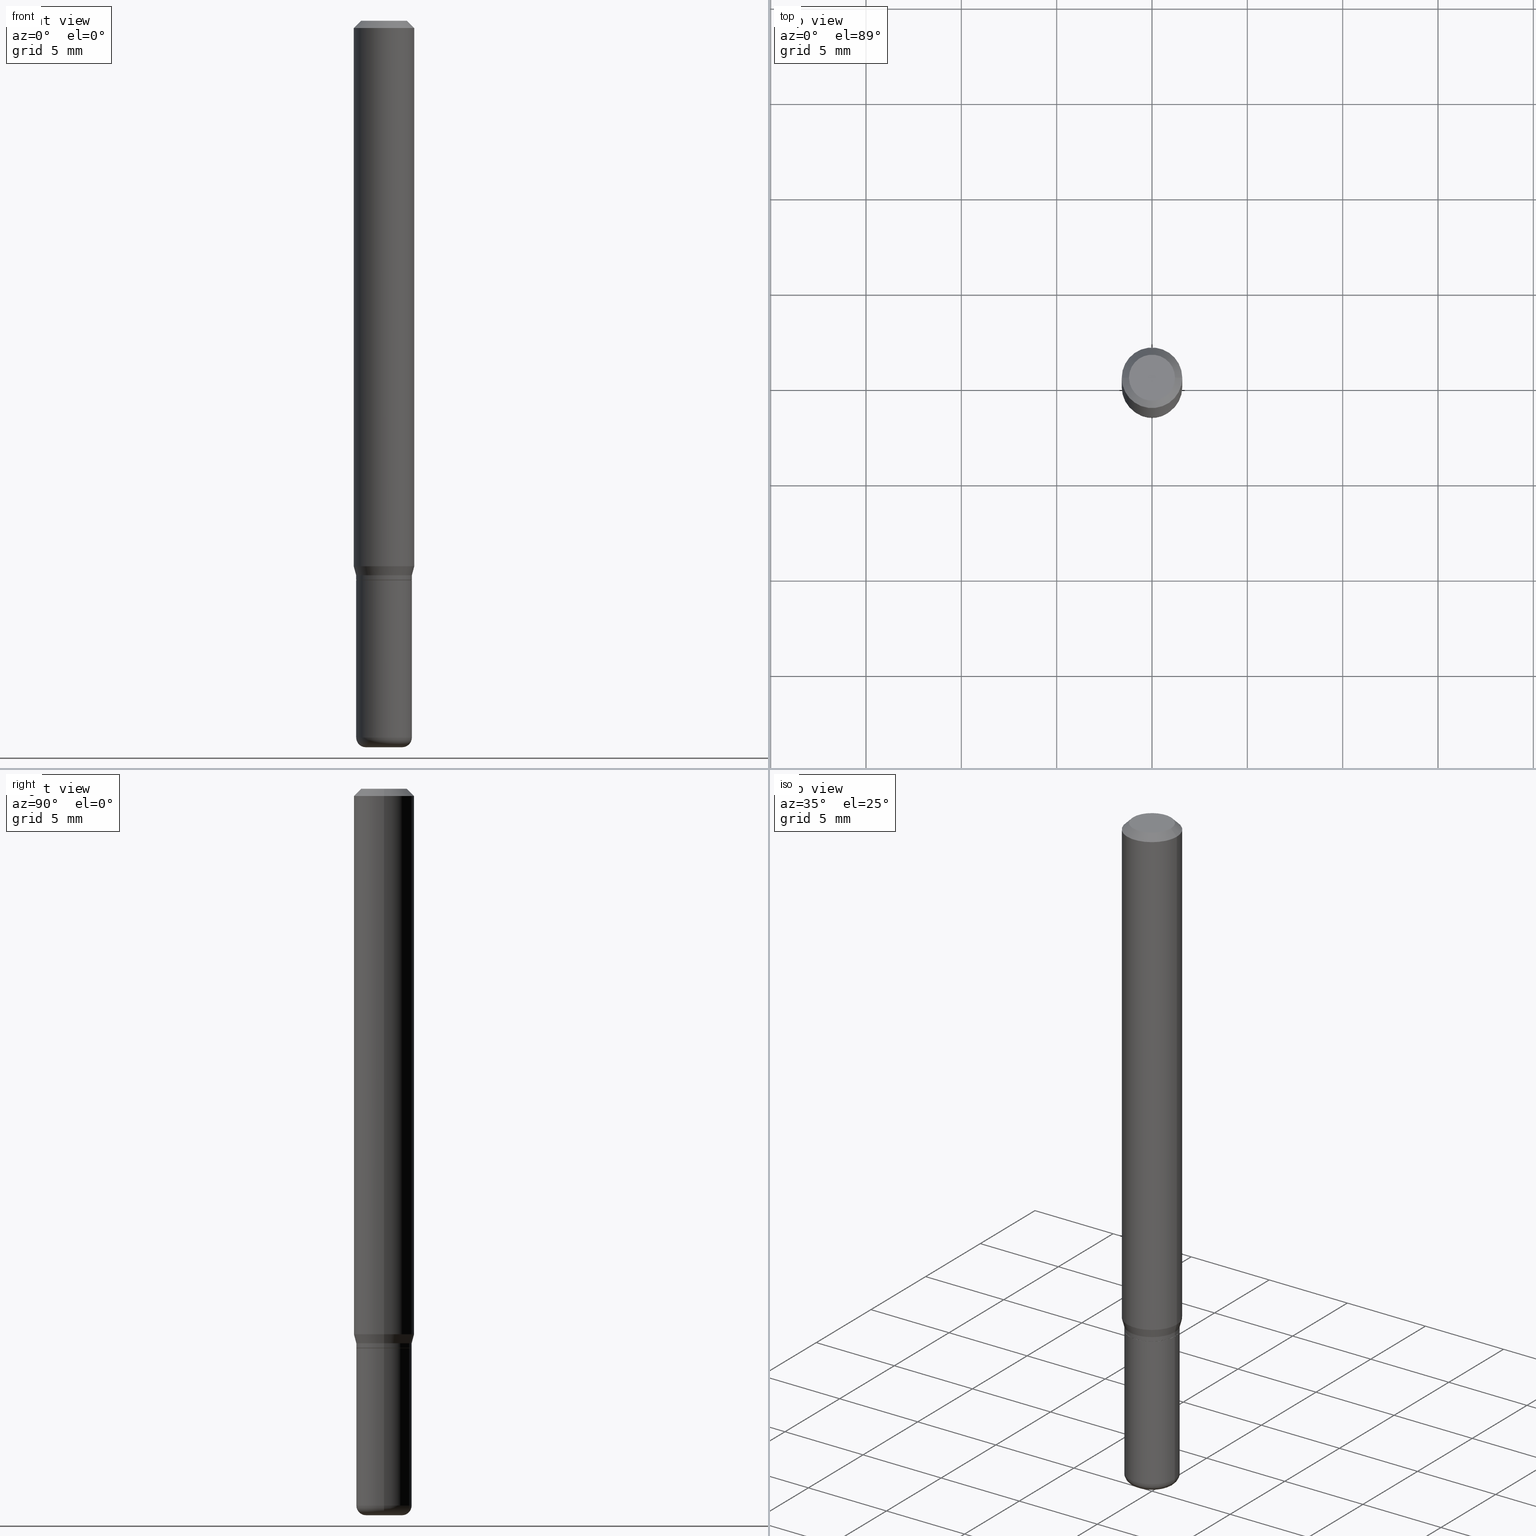
[diagram: canonical four-view strip — front | top / right | iso, engineering-drawing reading convention]
A machine part, canonical four-view strip (front | top / right | iso — engineering-drawing reading convention). The complete STEP part file that produces these views, byte-faithful:
ISO-10303-21;
HEADER;
FILE_DESCRIPTION (( 'STEP AP203' ),
    '1' );
FILE_NAME ('08628.STEP',
    '2024-02-29T20:03:48',
    ( '' ),
    ( '' ),
    'SwSTEP 2.0',
    'SolidWorks 2023',
    '' );
FILE_SCHEMA (( 'CONFIG_CONTROL_DESIGN' ));
ENDSEC;

DATA;
#1 = TOROIDAL_SURFACE ( 'NONE', #433, 0.03749999999999999861, 0.02000000000000002470 ) ;
#2 = APPLICATION_PROTOCOL_DEFINITION ( 'international standard', 'config_control_design', 1994, #390 ) ;
#3 = AXIS2_PLACEMENT_3D ( 'NONE', #147, #298, #456 ) ;
#4 = APPROVAL_PERSON_ORGANIZATION ( #484, #283, #92 ) ;
#5 = ORIENTED_EDGE ( 'NONE', *, *, #215, .T. ) ;
#6 = DATE_AND_TIME ( #487, #320 ) ;
#7 = CYLINDRICAL_SURFACE ( 'NONE', #10, 0.05750000000000001638 ) ;
#8 = DATE_AND_TIME ( #246, #376 ) ;
#9 = LINE ( 'NONE', #285, #69 ) ;
#10 = AXIS2_PLACEMENT_3D ( 'NONE', #324, #216, #243 ) ;
#11 = CONICAL_SURFACE ( 'NONE', #343, 0.05700000000000001593, 0.7853981633975507526 ) ;
#12 = DIRECTION ( 'NONE',  ( 0.2588190451025199623, 1.565188264969633209E-15, 0.9659258262890685343 ) ) ;
#13 = SECURITY_CLASSIFICATION_LEVEL ( 'unclassified' ) ;
#14 = ADVANCED_FACE ( 'NONE', ( #510 ), #452, .T. ) ;
#15 = CARTESIAN_POINT ( 'NONE',  ( -0.03749999999999999861, -4.900938855577818255E-15, -1.479999999999999982 ) ) ;
#16 = CARTESIAN_POINT ( 'NONE',  ( 2.824516471143833307E-29, -4.032660946363833383E-15, -1.155000000000000027 ) ) ;
#17 = DIRECTION ( 'NONE',  ( -2.445468806185136597E-29, 3.491481338843145583E-15, 1.000000000000000000 ) ) ;
#18 = AXIS2_PLACEMENT_3D ( 'NONE', #490, #47, #447 ) ;
#19 = ORIENTED_EDGE ( 'NONE', *, *, #460, .T. ) ;
#20 = CIRCLE ( 'NONE', #308, 0.03750000000000000555 ) ;
#21 = VECTOR ( 'NONE', #162, 39.37007874015748143 ) ;
#22 = CARTESIAN_POINT ( 'NONE',  ( 0.05750000000000003025, -5.568912735454815688E-15, -1.479999999999999982 ) ) ;
#23 = ORIENTED_EDGE ( 'NONE', *, *, #64, .F. ) ;
#24 = FACE_OUTER_BOUND ( 'NONE', #152, .T. ) ;
#25 = ORIENTED_EDGE ( 'NONE', *, *, #164, .T. ) ;
#26 = DIRECTION ( 'NONE',  ( 1.000000000000000000, -6.982962677686270655E-15, 4.883557194083114583E-29 ) ) ;
#27 = EDGE_LOOP ( 'NONE', ( #5, #25, #360, #66 ) ) ;
#28 = AXIS2_PLACEMENT_3D ( 'NONE', #338, #501, #26 ) ;
#29 = DIRECTION ( 'NONE',  ( -2.445468806185136597E-29, 3.491481338843145583E-15, 1.000000000000000000 ) ) ;
#30 = ADVANCED_FACE ( 'NONE', ( #316 ), #1, .T. ) ;
#31 = EDGE_LOOP ( 'NONE', ( #44, #61, #474, #186 ) ) ;
#32 = ORIENTED_EDGE ( 'NONE', *, *, #64, .T. ) ;
#33 = DIRECTION ( 'NONE',  ( 1.000000000000000000, -6.982962677686265922E-15, 4.876176775795935793E-29 ) ) ;
#34 = ORIENTED_EDGE ( 'NONE', *, *, #470, .T. ) ;
#35 = CLOSED_SHELL ( 'NONE', ( #361, #229, #315, #369, #94, #14, #421, #486, #109, #392, #127, #365 ) ) ;
#36 = CIRCLE ( 'NONE', #104, 0.04750000000000000749 ) ;
#37 = CC_DESIGN_APPROVAL ( #283, ( #114 ) ) ;
#38 = CARTESIAN_POINT ( 'NONE',  ( -0.05750000000000000250, 4.085620730620576246E-16, -2.828387676896570712E-30 ) ) ;
#39 = ORIENTED_EDGE ( 'NONE', *, *, #429, .F. ) ;
#40 = EDGE_CURVE ( 'NONE', #78, #58, #479, .T. ) ;
#41 = CARTESIAN_POINT ( 'NONE',  ( 0.06250000000000000000, -4.364351673553916694E-16, 3.047610484872459871E-30 ) ) ;
#42 = EDGE_LOOP ( 'NONE', ( #458, #34, #339, #280 ) ) ;
#43 = DIRECTION ( 'NONE',  ( -2.445468806185136597E-29, 3.491481338843145583E-15, 1.000000000000000000 ) ) ;
#44 = ORIENTED_EDGE ( 'NONE', *, *, #164, .F. ) ;
#45 = COORDINATED_UNIVERSAL_TIME_OFFSET ( 5, 0, .BEHIND. ) ;
#46 = AXIS2_PLACEMENT_3D ( 'NONE', #386, #29, #191 ) ;
#47 = DIRECTION ( 'NONE',  ( -2.445468806185136597E-29, 3.491481338843145583E-15, 1.000000000000000000 ) ) ;
#48 = ADVANCED_FACE ( 'NONE', ( #83 ), #7, .T. ) ;
#49 = DIRECTION ( 'NONE',  ( 2.438088387897960049E-29, -3.491481338843145188E-15, -1.000000000000000000 ) ) ;
#50 = APPROVAL_DATE_TIME ( #135, #283 ) ;
#51 = DIRECTION ( 'NONE',  ( -2.445468806185136597E-29, 3.491481338843145583E-15, 1.000000000000000000 ) ) ;
#52 = VECTOR ( 'NONE', #252, 39.37007874015748143 ) ;
#53 = CARTESIAN_POINT ( 'NONE',  ( 2.800061783081981762E-29, -3.997746132975402522E-15, -1.145000000000000240 ) ) ;
#54 = AXIS2_PLACEMENT_3D ( 'NONE', #506, #43, #153 ) ;
#55 = CARTESIAN_POINT ( 'NONE',  ( 0.000000000000000000, 0.000000000000000000, 0.000000000000000000 ) ) ;
#56 = DIRECTION ( 'NONE',  ( 1.000000000000000000, -6.982962677686263555E-15, 0.000000000000000000 ) ) ;
#57 = LINE ( 'NONE', #184, #113 ) ;
#58 = VERTEX_POINT ( 'NONE', #488 ) ;
#59 = FACE_OUTER_BOUND ( 'NONE', #395, .T. ) ;
#60 = AXIS2_PLACEMENT_3D ( 'NONE', #75, #82, #233 ) ;
#61 = ORIENTED_EDGE ( 'NONE', *, *, #497, .T. ) ;
#62 = MANIFOLD_SOLID_BREP ( 'Body-Move/Copy2[1]', #327 ) ;
#63 = DIRECTION ( 'NONE',  ( -2.445468806185136597E-29, 3.491481338843145583E-15, 1.000000000000000000 ) ) ;
#64 = EDGE_CURVE ( 'NONE', #105, #391, #134, .T. ) ;
#65 = DIRECTION ( 'NONE',  ( -2.445468806185136597E-29, 3.491481338843145583E-15, 1.000000000000000000 ) ) ;
#66 = ORIENTED_EDGE ( 'NONE', *, *, #225, .F. ) ;
#67 = EDGE_CURVE ( 'NONE', #144, #397, #9, .T. ) ;
#68 = DIRECTION ( 'NONE',  ( 1.000000000000000000, -6.982962677686265922E-15, 4.876176775795935232E-29 ) ) ;
#69 = VECTOR ( 'NONE', #409, 39.37007874015748143 ) ;
#70 = CONICAL_SURFACE ( 'NONE', #463, 0.05700000000000001593, 0.7853981633975507526 ) ;
#71 = CC_DESIGN_APPROVAL ( #179, ( #512 ) ) ;
#72 = FACE_OUTER_BOUND ( 'NONE', #159, .T. ) ;
#73 = VERTEX_POINT ( 'NONE', #445 ) ;
#74 = MANIFOLD_SOLID_BREP ( 'Body-Move/Copy2[2]', #35 ) ;
#75 = CARTESIAN_POINT ( 'NONE',  ( 0.000000000000000000, 0.000000000000000000, 0.000000000000000000 ) ) ;
#76 = ORIENTED_EDGE ( 'NONE', *, *, #413, .T. ) ;
#77 = PLANE ( 'NONE',  #471 ) ;
#78 = VERTEX_POINT ( 'NONE', #170 ) ;
#79 = CC_DESIGN_PERSON_AND_ORGANIZATION_ASSIGNMENT ( #169, #130, ( #512 ) ) ;
#80 = AXIS2_PLACEMENT_3D ( 'NONE', #336, #63, #217 ) ;
#81 = AXIS2_PLACEMENT_3D ( 'NONE', #352, #239, #399 ) ;
#82 = DIRECTION ( 'NONE',  ( -2.445468806185136597E-29, 3.491481338843145583E-15, 1.000000000000000000 ) ) ;
#83 = FACE_OUTER_BOUND ( 'NONE', #278, .T. ) ;
#84 = DIRECTION ( 'NONE',  ( -2.445468806185136877E-29, 3.491481338843145188E-15, 1.000000000000000000 ) ) ;
#85 = ORIENTED_EDGE ( 'NONE', *, *, #148, .F. ) ;
#86 = EDGE_CURVE ( 'NONE', #78, #168, #481, .T. ) ;
#87 = CALENDAR_DATE ( 2024, 29, 2 ) ;
#88 = CARTESIAN_POINT ( 'NONE',  ( -0.05700000000000001593, -3.627651586980575917E-15, -1.155000000000000027 ) ) ;
#89 = AXIS2_PLACEMENT_3D ( 'NONE', #107, #504, #263 ) ;
#90 = AXIS2_PLACEMENT_3D ( 'NONE', #205, #396, #307 ) ;
#91 = FACE_OUTER_BOUND ( 'NONE', #299, .T. ) ;
#92 = APPROVAL_ROLE ( '' ) ;
#93 = PLANE ( 'NONE',  #353 ) ;
#94 = ADVANCED_FACE ( 'NONE', ( #493 ), #98, .T. ) ;
#95 = PERSON_AND_ORGANIZATION ( #244, #385 ) ;
#96 = LINE ( 'NONE', #363, #52 ) ;
#97 = DATE_TIME_ROLE ( 'classification_date' ) ;
#98 = CONICAL_SURFACE ( 'NONE', #270, 0.05749999999999999556, 0.2617993877991485197 ) ;
#99 = PLANE ( 'NONE',  #402 ) ;
#100 = DIRECTION ( 'NONE',  ( 1.000000000000000000, -6.982962677686266711E-15, 4.852736867747365086E-29 ) ) ;
#101 = DIRECTION ( 'NONE',  ( -2.445468806185136597E-29, 3.491481338843145583E-15, 1.000000000000000000 ) ) ;
#102 = EDGE_LOOP ( 'NONE', ( #227, #19, #383, #23 ) ) ;
#103 = DIRECTION ( 'NONE',  ( 1.000000000000000000, -6.982962677686263555E-15, 0.000000000000000000 ) ) ;
#104 = AXIS2_PLACEMENT_3D ( 'NONE', #141, #347, #100 ) ;
#105 = VERTEX_POINT ( 'NONE', #406 ) ;
#106 = CC_DESIGN_APPROVAL ( #297, ( #398 ) ) ;
#107 = CARTESIAN_POINT ( 'NONE',  ( 0.03749999999999999861, -5.429253481901090669E-15, -1.479999999999999982 ) ) ;
#108 = EDGE_LOOP ( 'NONE', ( #342, #416 ) ) ;
#109 = ADVANCED_FACE ( 'NONE', ( #91 ), #93, .F. ) ;
#110 = CYLINDRICAL_SURFACE ( 'NONE', #328, 0.05750000000000000250 ) ;
#111 = ORIENTED_EDGE ( 'NONE', *, *, #429, .T. ) ;
#112 = CYLINDRICAL_SURFACE ( 'NONE', #60, 0.06250000000000000000 ) ;
#113 = VECTOR ( 'NONE', #419, 39.37007874015748143 ) ;
#114 = SECURITY_CLASSIFICATION ( '', '', #13 ) ;
#115 = EDGE_CURVE ( 'NONE', #192, #58, #503, .T. ) ;
#116 = LINE ( 'NONE', #160, #21 ) ;
#117 = ORIENTED_EDGE ( 'NONE', *, *, #437, .T. ) ;
#118 = DIRECTION ( 'NONE',  ( -2.445468806185136877E-29, 3.491481338843145188E-15, 1.000000000000000000 ) ) ;
#119 = EDGE_CURVE ( 'NONE', #168, #78, #499, .T. ) ;
#120 = ORIENTED_EDGE ( 'NONE', *, *, #260, .F. ) ;
#121 = PRODUCT_DEFINITION_SHAPE ( 'NONE', 'NONE',  #398 ) ;
#122 = DIRECTION ( 'NONE',  ( -2.445468806185136597E-29, 3.491481338843145583E-15, 1.000000000000000000 ) ) ;
#123 = VERTEX_POINT ( 'NONE', #210 ) ;
#124 = AXIS2_PLACEMENT_3D ( 'NONE', #185, #17, #181 ) ;
#125 = DIRECTION ( 'NONE',  ( -1.000000000000000000, 6.982962677686266711E-15, 0.000000000000000000 ) ) ;
#126 = ORIENTED_EDGE ( 'NONE', *, *, #137, .T. ) ;
#127 = ADVANCED_FACE ( 'NONE', ( #441 ), #70, .T. ) ;
#128 = PERSON_AND_ORGANIZATION_ROLE ( 'creator' ) ;
#129 = DIRECTION ( 'NONE',  ( -2.445468806185136597E-29, 3.491481338843145583E-15, 1.000000000000000000 ) ) ;
#130 = PERSON_AND_ORGANIZATION_ROLE ( 'creator' ) ;
#131 = CARTESIAN_POINT ( 'NONE',  ( -0.06250000000000000000, 3.840629472727455270E-16, -0.01499999999999970281 ) ) ;
#132 = VECTOR ( 'NONE', #12, 39.37007874015748143 ) ;
#133 = DATE_AND_TIME ( #251, #425 ) ;
#134 = LINE ( 'NONE', #131, #211 ) ;
#135 = DATE_AND_TIME ( #87, #190 ) ;
#136 = DIRECTION ( 'NONE',  ( 1.000000000000000000, -6.982962677686273810E-15, 0.000000000000000000 ) ) ;
#137 = EDGE_CURVE ( 'NONE', #58, #461, #366, .T. ) ;
#138 = PERSON_AND_ORGANIZATION ( #244, #385 ) ;
#139 = DIRECTION ( 'NONE',  ( -0.7071067811866199593, 7.493145998870616062E-15, 0.7071067811864750752 ) ) ;
#140 = AXIS2_PLACEMENT_3D ( 'NONE', #459, #301, #264 ) ;
#141 = CARTESIAN_POINT ( 'NONE',  ( -6.680649051745406845E-45, 9.538196290434862081E-31, 2.731847993664263218E-16 ) ) ;
#142 = CC_DESIGN_PERSON_AND_ORGANIZATION_ASSIGNMENT ( #446, #359, ( #114 ) ) ;
#143 = FACE_OUTER_BOUND ( 'NONE', #27, .T. ) ;
#144 = VERTEX_POINT ( 'NONE', #331 ) ;
#145 = CARTESIAN_POINT ( 'NONE',  ( 3.619293833154002365E-29, -5.167392381487854879E-15, -1.479999999999999982 ) ) ;
#146 = ORIENTED_EDGE ( 'NONE', *, *, #115, .T. ) ;
#147 = CARTESIAN_POINT ( 'NONE',  ( 3.668203209277632395E-31, -5.237222008264614861E-17, -0.01499999999999970281 ) ) ;
#148 = EDGE_CURVE ( 'NONE', #358, #397, #236, .T. ) ;
#149 = AXIS2_PLACEMENT_3D ( 'NONE', #364, #172, #332 ) ;
#150 = AXIS2_PLACEMENT_3D ( 'NONE', #55, #442, #171 ) ;
#151 = DIRECTION ( 'NONE',  ( -2.445468806185136597E-29, 3.491481338843145583E-15, 1.000000000000000000 ) ) ;
#152 = EDGE_LOOP ( 'NONE', ( #196, #296, #85, #318 ) ) ;
#153 = DIRECTION ( 'NONE',  ( 1.000000000000000000, -6.982962677686263555E-15, 0.000000000000000000 ) ) ;
#154 = ORIENTED_EDGE ( 'NONE', *, *, #413, .F. ) ;
#155 = CARTESIAN_POINT ( 'NONE',  ( 3.668203209277704895E-29, -5.237222008264718177E-15, -1.500000000000000222 ) ) ;
#156 = CARTESIAN_POINT ( 'NONE',  ( 0.05750000000000000250, -4.015203539669603161E-16, 2.803801646082662941E-30 ) ) ;
#157 = VECTOR ( 'NONE', #84, 39.37007874015748143 ) ;
#158 = CARTESIAN_POINT ( 'NONE',  ( -0.06250000000000000000, -1.548394002303358444E-15, -0.01499999999999970281 ) ) ;
#159 = EDGE_LOOP ( 'NONE', ( #350, #154 ) ) ;
#160 = CARTESIAN_POINT ( 'NONE',  ( -0.05749999999999999556, -3.589184059913344947E-15, -1.145000000000000240 ) ) ;
#161 = ORIENTED_EDGE ( 'NONE', *, *, #304, .F. ) ;
#162 = DIRECTION ( 'NONE',  ( -0.2588190451025199623, 5.211531920934541575E-15, 0.9659258262890685343 ) ) ;
#163 = ORIENTED_EDGE ( 'NONE', *, *, #351, .F. ) ;
#164 = EDGE_CURVE ( 'NONE', #206, #168, #178, .T. ) ;
#165 = CIRCLE ( 'NONE', #410, 0.05750000000000000250 ) ;
#166 = AXIS2_PLACEMENT_3D ( 'NONE', #231, #237, #393 ) ;
#167 = COORDINATED_UNIVERSAL_TIME_OFFSET ( 5, 0, .BEHIND. ) ;
#168 = VERTEX_POINT ( 'NONE', #289 ) ;
#169 = PERSON_AND_ORGANIZATION ( #244, #385 ) ;
#170 = CARTESIAN_POINT ( 'NONE',  ( 0.05750000000000001638, -4.432435559661372688E-15, -1.154500000000000304 ) ) ;
#171 = DIRECTION ( 'NONE',  ( 1.000000000000000000, 0.000000000000000000, 0.000000000000000000 ) ) ;
#172 = DIRECTION ( 'NONE',  ( -2.445468806185136597E-29, 3.491481338843145583E-15, 1.000000000000000000 ) ) ;
#173 = TOROIDAL_SURFACE ( 'NONE', #28, 0.03749999999999999861, 0.02000000000000002470 ) ;
#174 = APPROVAL_STATUS ( 'not_yet_approved' ) ;
#175 = VECTOR ( 'NONE', #228, 39.37007874015748143 ) ;
#176 = CARTESIAN_POINT ( 'NONE',  ( 2.824516471143833307E-29, -4.032660946363833383E-15, -1.155000000000000027 ) ) ;
#177 = DIRECTION ( 'NONE',  ( 7.105427357601001859E-15, 1.000000000000000000, -3.491481338843145583E-15 ) ) ;
#178 = LINE ( 'NONE', #88, #188 ) ;
#179 = APPROVAL ( #286, 'UNSPECIFIED' ) ;
#180 = CIRCLE ( 'NONE', #384, 0.05750000000000003025 ) ;
#181 = DIRECTION ( 'NONE',  ( 1.000000000000000000, -6.982962677686270655E-15, 0.000000000000000000 ) ) ;
#182 = CIRCLE ( 'NONE', #81, 0.05749999999999999556 ) ;
#183 = ORIENTED_EDGE ( 'NONE', *, *, #494, .F. ) ;
#184 = CARTESIAN_POINT ( 'NONE',  ( 0.05700000000000001593, -4.430689818991950396E-15, -1.155000000000000027 ) ) ;
#185 = CARTESIAN_POINT ( 'NONE',  ( 3.619293833154002365E-29, -5.167392381487854879E-15, -1.479999999999999982 ) ) ;
#186 = ORIENTED_EDGE ( 'NONE', *, *, #119, .F. ) ;
#187 = CARTESIAN_POINT ( 'NONE',  ( 0.000000000000000000, 0.000000000000000000, 0.000000000000000000 ) ) ;
#188 = VECTOR ( 'NONE', #139, 39.37007874015748143 ) ;
#189 = ORIENTED_EDGE ( 'NONE', *, *, #193, .T. ) ;
#190 = LOCAL_TIME ( 15, 3, 48.00000000000000000, #284 ) ;
#191 = DIRECTION ( 'NONE',  ( 1.000000000000000000, -6.982962677686266711E-15, 4.876176775795935793E-29 ) ) ;
#192 = VERTEX_POINT ( 'NONE', #449 ) ;
#193 = EDGE_CURVE ( 'NONE', #276, #358, #96, .T. ) ;
#194 = DIRECTION ( 'NONE',  ( 1.000000000000000000, -6.982962677686265922E-15, 0.000000000000000000 ) ) ;
#195 = DIRECTION ( 'NONE',  ( -2.445468806185136597E-29, 3.491481338843145583E-15, 1.000000000000000000 ) ) ;
#196 = ORIENTED_EDGE ( 'NONE', *, *, #260, .T. ) ;
#197 = CONICAL_SURFACE ( 'NONE', #319, 0.06250000000000000000, 0.7853981633974488341 ) ;
#198 = CONICAL_SURFACE ( 'NONE', #418, 0.06250000000000000000, 0.7853981633974488341 ) ;
#199 = CARTESIAN_POINT ( 'NONE',  ( -0.06250000000000000000, 4.440892098500626162E-16, -3.074334431409316114E-30 ) ) ;
#200 = PRODUCT ( '08628', '08628', '', ( #321 ) ) ;
#201 = DIRECTION ( 'NONE',  ( -2.445468806185136597E-29, 3.491481338843145583E-15, 1.000000000000000000 ) ) ;
#202 = EDGE_CURVE ( 'NONE', #309, #144, #489, .T. ) ;
#203 = DIRECTION ( 'NONE',  ( 1.000000000000000000, -6.982962677686266711E-15, 0.000000000000000000 ) ) ;
#204 = ORIENTED_EDGE ( 'NONE', *, *, #119, .T. ) ;
#205 = CARTESIAN_POINT ( 'NONE',  ( 3.582686580359766038E-29, -5.359686688179453325E-15, -1.500000000000000222 ) ) ;
#206 = VERTEX_POINT ( 'NONE', #496 ) ;
#207 = CARTESIAN_POINT ( 'NONE',  ( 0.05749999999999999556, -4.399266486942362543E-15, -1.145000000000000240 ) ) ;
#208 = ADVANCED_FACE ( 'NONE', ( #451 ), #99, .F. ) ;
#209 = DIRECTION ( 'NONE',  ( 1.000000000000000000, -6.982962677686265922E-15, 0.000000000000000000 ) ) ;
#210 = CARTESIAN_POINT ( 'NONE',  ( 0.06250000000000000000, -4.888073874380378612E-16, -0.01499999999999970281 ) ) ;
#211 = VECTOR ( 'NONE', #401, 39.37007874015748143 ) ;
#212 = CIRCLE ( 'NONE', #424, 0.05700000000000001593 ) ;
#213 = PERSON_AND_ORGANIZATION ( #244, #385 ) ;
#214 = CARTESIAN_POINT ( 'NONE',  ( 2.800061783081981762E-29, -3.997746132975402522E-15, -1.145000000000000240 ) ) ;
#215 = EDGE_CURVE ( 'NONE', #348, #206, #212, .T. ) ;
#216 = DIRECTION ( 'NONE',  ( -2.445468806185136597E-29, 3.491481338843145583E-15, 1.000000000000000000 ) ) ;
#217 = DIRECTION ( 'NONE',  ( 1.000000000000000000, -6.982962677686262766E-15, 0.000000000000000000 ) ) ;
#218 = AXIS2_PLACEMENT_3D ( 'NONE', #15, #177, #292 ) ;
#219 = CIRCLE ( 'NONE', #166, 0.06250000000000000000 ) ;
#220 = DIRECTION ( 'NONE',  ( 1.000000000000000000, -6.982962677686270655E-15, 0.000000000000000000 ) ) ;
#221 = FACE_OUTER_BOUND ( 'NONE', #102, .T. ) ;
#222 = ORIENTED_EDGE ( 'NONE', *, *, #290, .T. ) ;
#223 = CYLINDRICAL_SURFACE ( 'NONE', #262, 0.05750000000000000250 ) ;
#224 = ORIENTED_EDGE ( 'NONE', *, *, #465, .T. ) ;
#225 = EDGE_CURVE ( 'NONE', #348, #78, #57, .T. ) ;
#226 = FACE_OUTER_BOUND ( 'NONE', #322, .T. ) ;
#227 = ORIENTED_EDGE ( 'NONE', *, *, #379, .F. ) ;
#228 = DIRECTION ( 'NONE',  ( 0.7071067811865479058, -7.319954787623257623E-15, -0.7071067811865471286 ) ) ;
#229 = ADVANCED_FACE ( 'NONE', ( #143 ), #11, .T. ) ;
#230 = ORIENTED_EDGE ( 'NONE', *, *, #470, .F. ) ;
#231 = CARTESIAN_POINT ( 'NONE',  ( 2.754428713916943180E-29, -3.932594204224195830E-15, -1.126339745962155803 ) ) ;
#232 = EDGE_LOOP ( 'NONE', ( #427, #204, #381, #502 ) ) ;
#233 = DIRECTION ( 'NONE',  ( 1.000000000000000000, -6.982962677686266711E-15, 4.876176775795935793E-29 ) ) ;
#234 = UNCERTAINTY_MEASURE_WITH_UNIT (LENGTH_MEASURE( 1.000000000000000082E-05 ), #509, 'distance_accuracy_value', 'NONE');
#235 = EDGE_LOOP ( 'NONE', ( #303, #430, #120, #420 ) ) ;
#236 = CIRCLE ( 'NONE', #435, 0.05750000000000000250 ) ;
#237 = DIRECTION ( 'NONE',  ( -2.445468806185136597E-29, 3.491481338843145583E-15, 1.000000000000000000 ) ) ;
#238 = EDGE_LOOP ( 'NONE', ( #505, #117, #224, #163 ) ) ;
#239 = DIRECTION ( 'NONE',  ( -2.445468806185136597E-29, 3.491481338843145583E-15, 1.000000000000000000 ) ) ;
#240 = ORIENTED_EDGE ( 'NONE', *, *, #497, .F. ) ;
#241 = DIMENSIONAL_EXPONENTS ( 1.000000000000000000, 0.000000000000000000, 0.000000000000000000, 0.000000000000000000, 0.000000000000000000, 0.000000000000000000, 0.000000000000000000 ) ;
#242 = SHAPE_DEFINITION_REPRESENTATION ( #121, #311 ) ;
#243 = DIRECTION ( 'NONE',  ( 1.000000000000000000, -6.982962677686265922E-15, 4.876176775795935793E-29 ) ) ;
#244 = PERSON ( 'UNSPECIFIED', 'UNSPECIFIED', 'UNSPECIFIED', ('UNSPECIFIED'), ('UNSPECIFIED'), ('UNSPECIFIED') ) ;
#245 = CIRCLE ( 'NONE', #89, 0.02000000000000002470 ) ;
#246 = CALENDAR_DATE ( 2024, 29, 2 ) ;
#247 = CARTESIAN_POINT ( 'NONE',  ( 3.316907271900976589E-16, 0.04750000000000000749, -2.925296391183627249E-17 ) ) ;
#248 = APPLICATION_PROTOCOL_DEFINITION ( 'international standard', 'config_control_design', 1994, #257 ) ;
#249 = DIRECTION ( 'NONE',  ( -2.445468806185136597E-29, 3.491481338843145583E-15, 1.000000000000000000 ) ) ;
#250 = EDGE_CURVE ( 'NONE', #507, #276, #245, .T. ) ;
#251 = CALENDAR_DATE ( 2024, 29, 2 ) ;
#252 = DIRECTION ( 'NONE',  ( -2.445468806185136877E-29, 3.491481338843145188E-15, 1.000000000000000000 ) ) ;
#253 = EDGE_CURVE ( 'NONE', #507, #309, #254, .T. ) ;
#254 = CIRCLE ( 'NONE', #417, 0.03750000000000000555 ) ;
#255 = APPROVAL_ROLE ( '' ) ;
#256 = CARTESIAN_POINT ( 'NONE',  ( 4.015203539669885672E-16, 0.05749999999999597100, -1.155000000000000249 ) ) ;
#257 = APPLICATION_CONTEXT ( 'configuration controlled 3d designs of mechanical parts and assemblies' ) ;
#258 = CYLINDRICAL_SURFACE ( 'NONE', #140, 0.05750000000000001638 ) ;
#259 = CARTESIAN_POINT ( 'NONE',  ( -0.03750000000000000555, -4.864799395390239823E-15, -1.500000000000000222 ) ) ;
#260 = EDGE_CURVE ( 'NONE', #276, #144, #300, .T. ) ;
#261 = ORIENTED_EDGE ( 'NONE', *, *, #351, .T. ) ;
#262 = AXIS2_PLACEMENT_3D ( 'NONE', #187, #151, #302 ) ;
#263 = DIRECTION ( 'NONE',  ( 1.000000000000000000, -6.982962677686275388E-15, 0.000000000000000000 ) ) ;
#264 = DIRECTION ( 'NONE',  ( 1.000000000000000000, -6.982962677686265922E-15, 4.876176775795935793E-29 ) ) ;
#265 = ORIENTED_EDGE ( 'NONE', *, *, #465, .F. ) ;
#266 = CARTESIAN_POINT ( 'NONE',  ( 0.000000000000000000, 0.000000000000000000, 0.000000000000000000 ) ) ;
#267 = ORIENTED_EDGE ( 'NONE', *, *, #460, .F. ) ;
#268 = CC_DESIGN_PERSON_AND_ORGANIZATION_ASSIGNMENT ( #370, #128, ( #398 ) ) ;
#269 = CARTESIAN_POINT ( 'NONE',  ( -0.05750000000000000250, -4.191464590863786555E-15, -1.155000000000000027 ) ) ;
#270 = AXIS2_PLACEMENT_3D ( 'NONE', #53, #51, #404 ) ;
#271 = ORIENTED_EDGE ( 'NONE', *, *, #443, .T. ) ;
#272 =( GEOMETRIC_REPRESENTATION_CONTEXT ( 3 ) GLOBAL_UNCERTAINTY_ASSIGNED_CONTEXT ( ( #234 ) ) GLOBAL_UNIT_ASSIGNED_CONTEXT ( ( #509, #288, #411 ) ) REPRESENTATION_CONTEXT ( 'NONE', 'WORKASPACE' ) );
#273 = FACE_OUTER_BOUND ( 'NONE', #378, .T. ) ;
#274 = ORIENTED_EDGE ( 'NONE', *, *, #40, .F. ) ;
#275 = FACE_OUTER_BOUND ( 'NONE', #439, .T. ) ;
#276 = VERTEX_POINT ( 'NONE', #22 ) ;
#277 = LINE ( 'NONE', #355, #175 ) ;
#278 = EDGE_LOOP ( 'NONE', ( #337, #466, #189, #161 ) ) ;
#279 = DIRECTION ( 'NONE',  ( -2.438088387897960049E-29, 3.491481338843145188E-15, 1.000000000000000000 ) ) ;
#280 = ORIENTED_EDGE ( 'NONE', *, *, #137, .F. ) ;
#281 = APPROVAL_DATE_TIME ( #6, #297 ) ;
#282 = DIRECTION ( 'NONE',  ( -2.445468806185136597E-29, 3.491481338843145583E-15, 1.000000000000000000 ) ) ;
#283 = APPROVAL ( #492, 'UNSPECIFIED' ) ;
#284 = COORDINATED_UNIVERSAL_TIME_OFFSET ( 5, 0, .BEHIND. ) ;
#285 = CARTESIAN_POINT ( 'NONE',  ( -0.05750000000000001638, 4.085620730620577232E-16, -2.828387676896571763E-30 ) ) ;
#286 = APPROVAL_STATUS ( 'not_yet_approved' ) ;
#287 = DIRECTION ( 'NONE',  ( -2.445468806185136597E-29, 3.491481338843145583E-15, 1.000000000000000000 ) ) ;
#288 =( NAMED_UNIT ( * ) PLANE_ANGLE_UNIT ( ) SI_UNIT ( $, .RADIAN. ) );
#289 = CARTESIAN_POINT ( 'NONE',  ( -0.05750000000000001638, -3.622353132632354304E-15, -1.154500000000000304 ) ) ;
#290 = EDGE_CURVE ( 'NONE', #461, #73, #511, .T. ) ;
#291 = COORDINATED_UNIVERSAL_TIME_OFFSET ( 5, 0, .BEHIND. ) ;
#292 = DIRECTION ( 'NONE',  ( -1.000000000000000000, 7.105427357601014480E-15, 0.000000000000000000 ) ) ;
#293 = VECTOR ( 'NONE', #436, 39.37007874015748143 ) ;
#294 = DIRECTION ( 'NONE',  ( 1.000000000000000000, -6.982962677686273810E-15, 0.000000000000000000 ) ) ;
#295 = CARTESIAN_POINT ( 'NONE',  ( 3.668203209277704895E-29, -5.237222008264718177E-15, -1.500000000000000222 ) ) ;
#296 = ORIENTED_EDGE ( 'NONE', *, *, #67, .T. ) ;
#297 = APPROVAL ( #174, 'UNSPECIFIED' ) ;
#298 = DIRECTION ( 'NONE',  ( -2.445468806185136597E-29, 3.491481338843145583E-15, 1.000000000000000000 ) ) ;
#299 = EDGE_LOOP ( 'NONE', ( #111, #518 ) ) ;
#300 = CIRCLE ( 'NONE', #124, 0.05750000000000003025 ) ;
#301 = DIRECTION ( 'NONE',  ( -2.445468806185136597E-29, 3.491481338843145583E-15, 1.000000000000000000 ) ) ;
#302 = DIRECTION ( 'NONE',  ( 1.000000000000000000, -6.982962677686265922E-15, 4.876176775795935232E-29 ) ) ;
#303 = ORIENTED_EDGE ( 'NONE', *, *, #253, .T. ) ;
#304 = EDGE_CURVE ( 'NONE', #397, #358, #165, .T. ) ;
#305 = CARTESIAN_POINT ( 'NONE',  ( 3.668203209277632395E-31, -5.237222008264614861E-17, -0.01499999999999970281 ) ) ;
#306 = ORIENTED_EDGE ( 'NONE', *, *, #345, .F. ) ;
#307 = DIRECTION ( 'NONE',  ( 1.000000000000000000, -6.982962677686265922E-15, 4.876176775795935793E-29 ) ) ;
#308 = AXIS2_PLACEMENT_3D ( 'NONE', #155, #122, #203 ) ;
#309 = VERTEX_POINT ( 'NONE', #259 ) ;
#310 = VECTOR ( 'NONE', #475, 39.37007874015748143 ) ;
#311 = ADVANCED_BREP_SHAPE_REPRESENTATION ( '08628', ( #62, #74, #150 ), #272 ) ;
#312 = CARTESIAN_POINT ( 'NONE',  ( 2.824516471143833307E-29, -4.032660946363833383E-15, -1.155000000000000027 ) ) ;
#313 = ORIENTED_EDGE ( 'NONE', *, *, #437, .F. ) ;
#314 = CARTESIAN_POINT ( 'NONE',  ( 3.668203209277632395E-31, -5.237222008264614861E-17, -0.01499999999999970281 ) ) ;
#315 = ADVANCED_FACE ( 'NONE', ( #221 ), #197, .T. ) ;
#316 = FACE_OUTER_BOUND ( 'NONE', #235, .T. ) ;
#317 = DIRECTION ( 'NONE',  ( 2.445468806185136597E-29, -3.491481338843145583E-15, -1.000000000000000000 ) ) ;
#318 = ORIENTED_EDGE ( 'NONE', *, *, #193, .F. ) ;
#319 = AXIS2_PLACEMENT_3D ( 'NONE', #415, #382, #377 ) ;
#320 = LOCAL_TIME ( 15, 3, 48.00000000000000000, #45 ) ;
#321 = MECHANICAL_CONTEXT ( 'NONE', #390, 'mechanical' ) ;
#322 = EDGE_LOOP ( 'NONE', ( #222, #271, #387, #265 ) ) ;
#323 = CC_DESIGN_PERSON_AND_ORGANIZATION_ASSIGNMENT ( #408, #450, ( #512 ) ) ;
#324 = CARTESIAN_POINT ( 'NONE',  ( 0.000000000000000000, 0.000000000000000000, 0.000000000000000000 ) ) ;
#325 = APPROVAL_DATE_TIME ( #133, #179 ) ;
#326 = CARTESIAN_POINT ( 'NONE',  ( 2.824516471143833307E-29, -4.032660946363833383E-15, -1.155000000000000027 ) ) ;
#327 = CLOSED_SHELL ( 'NONE', ( #30, #354, #208, #48, #340, #455 ) ) ;
#328 = AXIS2_PLACEMENT_3D ( 'NONE', #266, #423, #68 ) ;
#329 = APPROVAL_PERSON_ORGANIZATION ( #213, #297, #440 ) ;
#330 = PRODUCT_RELATED_PRODUCT_CATEGORY ( 'detail', '', ( #200 ) ) ;
#331 = CARTESIAN_POINT ( 'NONE',  ( -0.05750000000000003025, -4.191464590863786555E-15, -1.479999999999999982 ) ) ;
#332 = DIRECTION ( 'NONE',  ( 1.000000000000000000, -6.982962677686272233E-15, 0.000000000000000000 ) ) ;
#333 = DIRECTION ( 'NONE',  ( -2.445468806185136597E-29, 3.491481338843145583E-15, 1.000000000000000000 ) ) ;
#334 = VECTOR ( 'NONE', #118, 39.37007874015748143 ) ;
#335 = CIRCLE ( 'NONE', #54, 0.05700000000000001593 ) ;
#336 = CARTESIAN_POINT ( 'NONE',  ( 2.754428713916943180E-29, -3.932594204224195830E-15, -1.126339745962155803 ) ) ;
#337 = ORIENTED_EDGE ( 'NONE', *, *, #67, .F. ) ;
#338 = CARTESIAN_POINT ( 'NONE',  ( 3.619293833154002365E-29, -5.167392381487854879E-15, -1.479999999999999982 ) ) ;
#339 = ORIENTED_EDGE ( 'NONE', *, *, #290, .F. ) ;
#340 = ADVANCED_FACE ( 'NONE', ( #59 ), #173, .T. ) ;
#341 = CARTESIAN_POINT ( 'NONE',  ( 2.824516471143833307E-29, -4.032660946363833383E-15, -1.155000000000000027 ) ) ;
#342 = ORIENTED_EDGE ( 'NONE', *, *, #148, .T. ) ;
#343 = AXIS2_PLACEMENT_3D ( 'NONE', #457, #65, #103 ) ;
#344 = DIRECTION ( 'NONE',  ( -2.445468806185136597E-29, 3.491481338843145583E-15, 1.000000000000000000 ) ) ;
#345 = EDGE_CURVE ( 'NONE', #144, #276, #180, .T. ) ;
#346 = ORIENTED_EDGE ( 'NONE', *, *, #86, .T. ) ;
#347 = DIRECTION ( 'NONE',  ( -2.445468806185136597E-29, 3.491481338843145583E-15, 1.000000000000000000 ) ) ;
#348 = VERTEX_POINT ( 'NONE', #380 ) ;
#349 = LENGTH_MEASURE_WITH_UNIT ( LENGTH_MEASURE( 0.02539999999999999897 ), #389 );
#350 = ORIENTED_EDGE ( 'NONE', *, *, #253, .F. ) ;
#351 = EDGE_CURVE ( 'NONE', #391, #123, #453, .T. ) ;
#352 = CARTESIAN_POINT ( 'NONE',  ( 2.800061783081981762E-29, -3.997746132975402522E-15, -1.145000000000000240 ) ) ;
#353 = AXIS2_PLACEMENT_3D ( 'NONE', #247, #49, #371 ) ;
#354 = ADVANCED_FACE ( 'NONE', ( #24 ), #258, .T. ) ;
#355 = CARTESIAN_POINT ( 'NONE',  ( 0.06250000000000000000, -4.811533449433669144E-16, -0.01499999999999970281 ) ) ;
#356 = ORIENTED_EDGE ( 'NONE', *, *, #250, .T. ) ;
#357 = DIRECTION ( 'NONE',  ( 1.000000000000000000, -6.982962677686266711E-15, 4.852736867747365086E-29 ) ) ;
#358 = VERTEX_POINT ( 'NONE', #464 ) ;
#359 = PERSON_AND_ORGANIZATION_ROLE ( 'classification_officer' ) ;
#360 = ORIENTED_EDGE ( 'NONE', *, *, #86, .F. ) ;
#361 = ADVANCED_FACE ( 'NONE', ( #422 ), #223, .T. ) ;
#362 = COORDINATED_UNIVERSAL_TIME_OFFSET ( 5, 0, .BEHIND. ) ;
#363 = CARTESIAN_POINT ( 'NONE',  ( 0.05750000000000001638, -4.015203539669604147E-16, 2.803801646082663992E-30 ) ) ;
#364 = CARTESIAN_POINT ( 'NONE',  ( 2.823293736740741066E-29, -4.030915205694411879E-15, -1.154500000000000304 ) ) ;
#365 = ADVANCED_FACE ( 'NONE', ( #467 ), #110, .T. ) ;
#366 = LINE ( 'NONE', #207, #132 ) ;
#367 = AXIS2_PLACEMENT_3D ( 'NONE', #214, #249, #209 ) ;
#368 = APPROVAL_PERSON_ORGANIZATION ( #95, #179, #255 ) ;
#369 = ADVANCED_FACE ( 'NONE', ( #226 ), #414, .T. ) ;
#370 = PERSON_AND_ORGANIZATION ( #244, #385 ) ;
#371 = DIRECTION ( 'NONE',  ( -1.000000000000000000, 6.982962677686265922E-15, -4.876176775795935793E-29 ) ) ;
#372 = DIRECTION ( 'NONE',  ( -1.000000000000000000, 6.982962677686265922E-15, -4.876176775795935793E-29 ) ) ;
#373 = DIRECTION ( 'NONE',  ( -2.445468806185136597E-29, 3.491481338843145583E-15, 1.000000000000000000 ) ) ;
#374 = CC_DESIGN_DATE_AND_TIME_ASSIGNMENT ( #495, #97, ( #114 ) ) ;
#375 = EDGE_LOOP ( 'NONE', ( #230, #146, #126, #313 ) ) ;
#376 = LOCAL_TIME ( 15, 3, 48.00000000000000000, #291 ) ;
#377 = DIRECTION ( 'NONE',  ( -1.000000000000000000, 6.982962677686266711E-15, 0.000000000000000000 ) ) ;
#378 = EDGE_LOOP ( 'NONE', ( #267, #39, #32, #261 ) ) ;
#379 = EDGE_CURVE ( 'NONE', #468, #105, #36, .T. ) ;
#380 = CARTESIAN_POINT ( 'NONE',  ( 0.05700000000000001593, -4.430689818991950396E-15, -1.155000000000000027 ) ) ;
#381 = ORIENTED_EDGE ( 'NONE', *, *, #40, .T. ) ;
#382 = DIRECTION ( 'NONE',  ( 2.445468806185136597E-29, -3.491481338843145583E-15, -1.000000000000000000 ) ) ;
#383 = ORIENTED_EDGE ( 'NONE', *, *, #514, .T. ) ;
#384 = AXIS2_PLACEMENT_3D ( 'NONE', #145, #344, #220 ) ;
#385 = ORGANIZATION ( 'UNSPECIFIED', 'UNSPECIFIED', '' ) ;
#386 = CARTESIAN_POINT ( 'NONE',  ( 0.000000000000000000, 0.000000000000000000, 0.000000000000000000 ) ) ;
#387 = ORIENTED_EDGE ( 'NONE', *, *, #514, .F. ) ;
#388 = EDGE_CURVE ( 'NONE', #168, #192, #477, .T. ) ;
#389 =( LENGTH_UNIT ( ) NAMED_UNIT ( * ) SI_UNIT ( $, .METRE. ) );
#390 = APPLICATION_CONTEXT ( 'configuration controlled 3d designs of mechanical parts and assemblies' ) ;
#391 = VERTEX_POINT ( 'NONE', #158 ) ;
#392 = ADVANCED_FACE ( 'NONE', ( #275 ), #77, .F. ) ;
#393 = DIRECTION ( 'NONE',  ( 1.000000000000000000, -6.982962677686262766E-15, 0.000000000000000000 ) ) ;
#394 = AXIS2_PLACEMENT_3D ( 'NONE', #438, #195, #357 ) ;
#395 = EDGE_LOOP ( 'NONE', ( #483, #76, #356, #306 ) ) ;
#396 = DIRECTION ( 'NONE',  ( -2.438088387897960049E-29, 3.491481338843145188E-15, 1.000000000000000000 ) ) ;
#397 = VERTEX_POINT ( 'NONE', #269 ) ;
#398 = PRODUCT_DEFINITION ( 'UNKNOWN', '', #512, #478 ) ;
#399 = DIRECTION ( 'NONE',  ( 1.000000000000000000, -6.982962677686265922E-15, 0.000000000000000000 ) ) ;
#400 = ORIENTED_EDGE ( 'NONE', *, *, #388, .T. ) ;
#401 = DIRECTION ( 'NONE',  ( -0.7071067811865479058, 2.468850131082261005E-15, -0.7071067811865471286 ) ) ;
#402 = AXIS2_PLACEMENT_3D ( 'NONE', #256, #412, #372 ) ;
#403 = DATE_TIME_ROLE ( 'creation_date' ) ;
#404 = DIRECTION ( 'NONE',  ( 1.000000000000000000, -6.982962677686265922E-15, 0.000000000000000000 ) ) ;
#405 = CALENDAR_DATE ( 2024, 29, 2 ) ;
#406 = CARTESIAN_POINT ( 'NONE',  ( -0.04750000000000000749, 3.578768372314221353E-16, 2.731847993664239060E-16 ) ) ;
#407 = CC_DESIGN_DATE_AND_TIME_ASSIGNMENT ( #8, #403, ( #398 ) ) ;
#408 = PERSON_AND_ORGANIZATION ( #244, #385 ) ;
#409 = DIRECTION ( 'NONE',  ( -2.445468806185136877E-29, 3.491481338843145188E-15, 1.000000000000000000 ) ) ;
#410 = AXIS2_PLACEMENT_3D ( 'NONE', #341, #101, #294 ) ;
#411 =( NAMED_UNIT ( * ) SI_UNIT ( $, .STERADIAN. ) SOLID_ANGLE_UNIT ( ) );
#412 = DIRECTION ( 'NONE',  ( 2.438088387897960049E-29, -3.491481338843145188E-15, -1.000000000000000000 ) ) ;
#413 = EDGE_CURVE ( 'NONE', #309, #507, #20, .T. ) ;
#414 = CYLINDRICAL_SURFACE ( 'NONE', #46, 0.06250000000000000000 ) ;
#415 = CARTESIAN_POINT ( 'NONE',  ( 3.668203209277632395E-31, -5.237222008264614861E-17, -0.01499999999999970281 ) ) ;
#416 = ORIENTED_EDGE ( 'NONE', *, *, #304, .T. ) ;
#417 = AXIS2_PLACEMENT_3D ( 'NONE', #295, #373, #500 ) ;
#418 = AXIS2_PLACEMENT_3D ( 'NONE', #314, #317, #125 ) ;
#419 = DIRECTION ( 'NONE',  ( 0.7071067811866199593, -2.468850131083015945E-15, 0.7071067811864750752 ) ) ;
#420 = ORIENTED_EDGE ( 'NONE', *, *, #250, .F. ) ;
#421 = ADVANCED_FACE ( 'NONE', ( #431 ), #112, .T. ) ;
#422 = FACE_OUTER_BOUND ( 'NONE', #513, .T. ) ;
#423 = DIRECTION ( 'NONE',  ( -2.445468806185136597E-29, 3.491481338843145583E-15, 1.000000000000000000 ) ) ;
#424 = AXIS2_PLACEMENT_3D ( 'NONE', #16, #333, #498 ) ;
#425 = LOCAL_TIME ( 15, 3, 48.00000000000000000, #362 ) ;
#426 = DIRECTION ( 'NONE',  ( 1.000000000000000000, -6.982962677686266711E-15, 0.000000000000000000 ) ) ;
#427 = ORIENTED_EDGE ( 'NONE', *, *, #388, .F. ) ;
#428 = CARTESIAN_POINT ( 'NONE',  ( 0.03750000000000000555, -5.499083108677953967E-15, -1.500000000000000222 ) ) ;
#429 = EDGE_CURVE ( 'NONE', #105, #468, #444, .T. ) ;
#430 = ORIENTED_EDGE ( 'NONE', *, *, #202, .T. ) ;
#431 = FACE_OUTER_BOUND ( 'NONE', #238, .T. ) ;
#432 = CARTESIAN_POINT ( 'NONE',  ( 3.619293833154002365E-29, -5.167392381487854879E-15, -1.479999999999999982 ) ) ;
#433 = AXIS2_PLACEMENT_3D ( 'NONE', #432, #201, #516 ) ;
#434 = CARTESIAN_POINT ( 'NONE',  ( 0.06250000000000000000, -4.369029371579587499E-15, -1.126339745962155803 ) ) ;
#435 = AXIS2_PLACEMENT_3D ( 'NONE', #176, #282, #136 ) ;
#436 = DIRECTION ( 'NONE',  ( -2.445468806185136877E-29, 3.491481338843145188E-15, 1.000000000000000000 ) ) ;
#437 = EDGE_CURVE ( 'NONE', #73, #461, #219, .T. ) ;
#438 = CARTESIAN_POINT ( 'NONE',  ( -6.680649051745406845E-45, 9.538196290434862081E-31, 2.731847993664263218E-16 ) ) ;
#439 = EDGE_LOOP ( 'NONE', ( #476, #240 ) ) ;
#440 = APPROVAL_ROLE ( '' ) ;
#441 = FACE_OUTER_BOUND ( 'NONE', #31, .T. ) ;
#442 = DIRECTION ( 'NONE',  ( 0.000000000000000000, 0.000000000000000000, 1.000000000000000000 ) ) ;
#443 = EDGE_CURVE ( 'NONE', #73, #391, #517, .T. ) ;
#444 = CIRCLE ( 'NONE', #394, 0.04750000000000000749 ) ;
#445 = CARTESIAN_POINT ( 'NONE',  ( -0.06250000000000000000, -3.488504994374132819E-15, -1.126339745962155803 ) ) ;
#446 = PERSON_AND_ORGANIZATION ( #244, #385 ) ;
#447 = DIRECTION ( 'NONE',  ( 1.000000000000000000, -6.982962677686272233E-15, 0.000000000000000000 ) ) ;
#448 = PERSON_AND_ORGANIZATION_ROLE ( 'design_owner' ) ;
#449 = CARTESIAN_POINT ( 'NONE',  ( -0.05749999999999999556, -3.538844527143738686E-15, -1.145000000000000240 ) ) ;
#450 = PERSON_AND_ORGANIZATION_ROLE ( 'design_supplier' ) ;
#451 = FACE_OUTER_BOUND ( 'NONE', #108, .T. ) ;
#452 = CONICAL_SURFACE ( 'NONE', #462, 0.05749999999999999556, 0.2617993877991485197 ) ;
#453 = CIRCLE ( 'NONE', #3, 0.06250000000000000000 ) ;
#454 = LOCAL_TIME ( 15, 3, 48.00000000000000000, #167 ) ;
#455 = ADVANCED_FACE ( 'NONE', ( #72 ), #480, .F. ) ;
#456 = DIRECTION ( 'NONE',  ( 1.000000000000000000, -6.982962677686266711E-15, 0.000000000000000000 ) ) ;
#457 = CARTESIAN_POINT ( 'NONE',  ( 2.824516471143833307E-29, -4.032660946363833383E-15, -1.155000000000000027 ) ) ;
#458 = ORIENTED_EDGE ( 'NONE', *, *, #494, .T. ) ;
#459 = CARTESIAN_POINT ( 'NONE',  ( 0.000000000000000000, 0.000000000000000000, 0.000000000000000000 ) ) ;
#460 = EDGE_CURVE ( 'NONE', #468, #123, #277, .T. ) ;
#461 = VERTEX_POINT ( 'NONE', #434 ) ;
#462 = AXIS2_PLACEMENT_3D ( 'NONE', #485, #129, #194 ) ;
#463 = AXIS2_PLACEMENT_3D ( 'NONE', #326, #287, #56 ) ;
#464 = CARTESIAN_POINT ( 'NONE',  ( 0.05750000000000000250, -4.434181300330794192E-15, -1.155000000000000027 ) ) ;
#465 = EDGE_CURVE ( 'NONE', #461, #123, #515, .T. ) ;
#466 = ORIENTED_EDGE ( 'NONE', *, *, #345, .T. ) ;
#467 = FACE_OUTER_BOUND ( 'NONE', #232, .T. ) ;
#468 = VERTEX_POINT ( 'NONE', #473 ) ;
#469 = DIRECTION ( 'NONE',  ( -2.445468806185136597E-29, 3.491481338843145583E-15, 1.000000000000000000 ) ) ;
#470 = EDGE_CURVE ( 'NONE', #192, #73, #116, .T. ) ;
#471 = AXIS2_PLACEMENT_3D ( 'NONE', #312, #279, #33 ) ;
#472 = CC_DESIGN_SECURITY_CLASSIFICATION ( #114, ( #512 ) ) ;
#473 = CARTESIAN_POINT ( 'NONE',  ( 0.04750000000000000749, -4.035134999187568762E-16, 2.731847993664288856E-16 ) ) ;
#474 = ORIENTED_EDGE ( 'NONE', *, *, #225, .T. ) ;
#475 = DIRECTION ( 'NONE',  ( -2.445468806185136877E-29, 3.491481338843145188E-15, 1.000000000000000000 ) ) ;
#476 = ORIENTED_EDGE ( 'NONE', *, *, #215, .F. ) ;
#477 = LINE ( 'NONE', #38, #334 ) ;
#478 = DESIGN_CONTEXT ( 'detailed design', #257, 'design' ) ;
#479 = LINE ( 'NONE', #156, #293 ) ;
#480 = PLANE ( 'NONE',  #90 ) ;
#481 = CIRCLE ( 'NONE', #18, 0.05750000000000001638 ) ;
#482 = AXIS2_PLACEMENT_3D ( 'NONE', #305, #469, #426 ) ;
#483 = ORIENTED_EDGE ( 'NONE', *, *, #202, .F. ) ;
#484 = PERSON_AND_ORGANIZATION ( #244, #385 ) ;
#485 = CARTESIAN_POINT ( 'NONE',  ( 2.800061783081981762E-29, -3.997746132975402522E-15, -1.145000000000000240 ) ) ;
#486 = ADVANCED_FACE ( 'NONE', ( #273 ), #198, .T. ) ;
#487 = CALENDAR_DATE ( 2024, 29, 2 ) ;
#488 = CARTESIAN_POINT ( 'NONE',  ( 0.05749999999999999556, -4.399266486942362543E-15, -1.145000000000000240 ) ) ;
#489 = CIRCLE ( 'NONE', #218, 0.02000000000000002470 ) ;
#490 = CARTESIAN_POINT ( 'NONE',  ( 2.823293736740741066E-29, -4.030915205694411879E-15, -1.154500000000000304 ) ) ;
#491 = CIRCLE ( 'NONE', #482, 0.06250000000000000000 ) ;
#492 = APPROVAL_STATUS ( 'not_yet_approved' ) ;
#493 = FACE_OUTER_BOUND ( 'NONE', #42, .T. ) ;
#494 = EDGE_CURVE ( 'NONE', #58, #192, #182, .T. ) ;
#495 = DATE_AND_TIME ( #405, #454 ) ;
#496 = CARTESIAN_POINT ( 'NONE',  ( -0.05700000000000001593, -3.625002359806465505E-15, -1.155000000000000027 ) ) ;
#497 = EDGE_CURVE ( 'NONE', #206, #348, #335, .T. ) ;
#498 = DIRECTION ( 'NONE',  ( 1.000000000000000000, -6.982962677686263555E-15, 0.000000000000000000 ) ) ;
#499 = CIRCLE ( 'NONE', #149, 0.05750000000000001638 ) ;
#500 = DIRECTION ( 'NONE',  ( 1.000000000000000000, -6.982962677686266711E-15, 0.000000000000000000 ) ) ;
#501 = DIRECTION ( 'NONE',  ( -2.445468806185136597E-29, 3.491481338843145583E-15, 1.000000000000000000 ) ) ;
#502 = ORIENTED_EDGE ( 'NONE', *, *, #115, .F. ) ;
#503 = CIRCLE ( 'NONE', #367, 0.05749999999999999556 ) ;
#504 = DIRECTION ( 'NONE',  ( -6.982962677686266711E-15, -1.000000000000000000, 3.491481338843145583E-15 ) ) ;
#505 = ORIENTED_EDGE ( 'NONE', *, *, #443, .F. ) ;
#506 = CARTESIAN_POINT ( 'NONE',  ( 2.824516471143833307E-29, -4.032660946363833383E-15, -1.155000000000000027 ) ) ;
#507 = VERTEX_POINT ( 'NONE', #428 ) ;
#508 = CC_DESIGN_PERSON_AND_ORGANIZATION_ASSIGNMENT ( #138, #448, ( #200 ) ) ;
#509 =( CONVERSION_BASED_UNIT ( 'INCH', #349 ) LENGTH_UNIT ( ) NAMED_UNIT ( #241 ) );
#510 = FACE_OUTER_BOUND ( 'NONE', #375, .T. ) ;
#511 = CIRCLE ( 'NONE', #80, 0.06250000000000000000 ) ;
#512 = PRODUCT_DEFINITION_FORMATION_WITH_SPECIFIED_SOURCE ( 'ANY', '', #200, .NOT_KNOWN. ) ;
#513 = EDGE_LOOP ( 'NONE', ( #346, #400, #183, #274 ) ) ;
#514 = EDGE_CURVE ( 'NONE', #123, #391, #491, .T. ) ;
#515 = LINE ( 'NONE', #41, #157 ) ;
#516 = DIRECTION ( 'NONE',  ( 1.000000000000000000, -6.982962677686270655E-15, 4.883557194083114583E-29 ) ) ;
#517 = LINE ( 'NONE', #199, #310 ) ;
#518 = ORIENTED_EDGE ( 'NONE', *, *, #379, .T. ) ;
ENDSEC;
END-ISO-10303-21;
